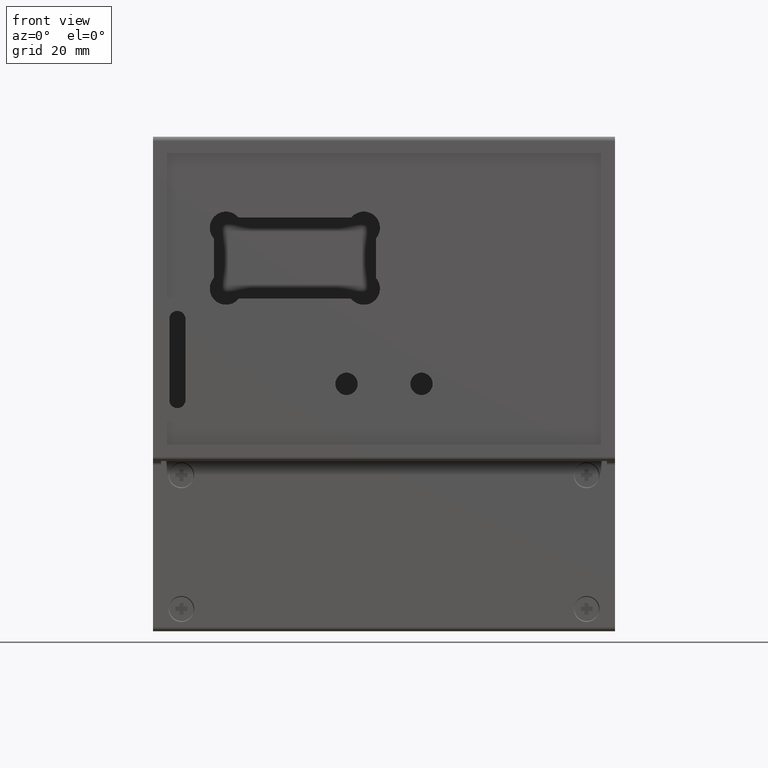
[diagram: clean part render]
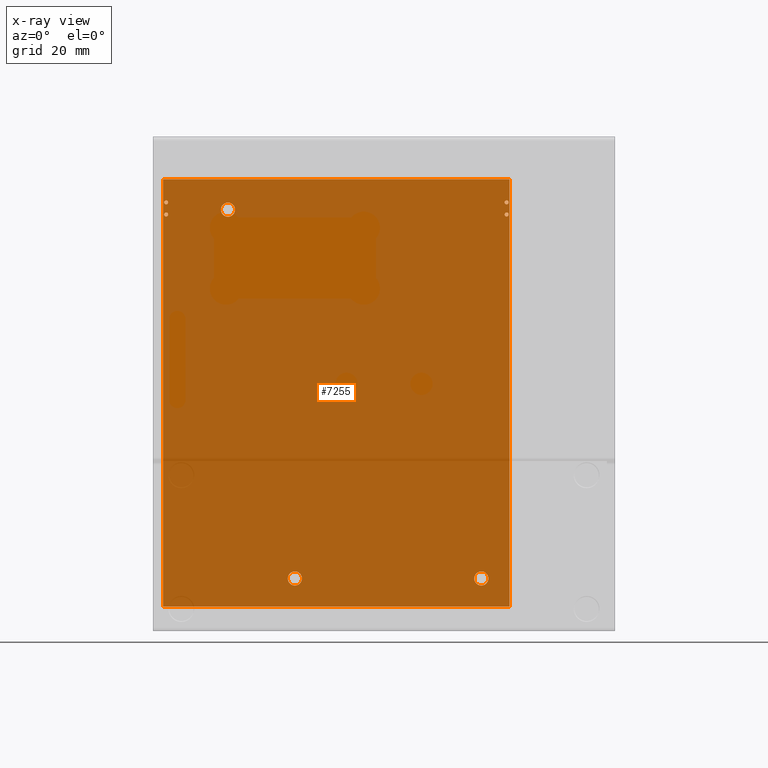
[diagram: x-ray — body ghosted, one internal face saturated and labeled with its STEP entity id]
A machine part, front view, then the same camera in x-ray: the body is ghosted and one INTERNAL B-rep face — a face not visible from any outside direction — is saturated and labeled: STEP entity #7255.
In plain terms, the highlighted planar face has unit normal (0, -1, 0).
Its self-contained STEP definition (entity closure, byte-faithful):
#6597=CARTESIAN_POINT('',(-41.750000000000000,-11.300000000000001,-0.800000000000011));
#6598=VERTEX_POINT('',#6597);
#6614=CARTESIAN_POINT('',(-42.750000000000000,-11.300000000000001,-0.800000000000011));
#6615=VERTEX_POINT('',#6614);
#6622=CARTESIAN_POINT('',(-42.250000000000000,-11.300000000000001,-0.800000000000011));
#6623=DIRECTION('',(0.0,0.0,1.0));
#6624=DIRECTION('',(1.0,0.0,0.0));
#6625=AXIS2_PLACEMENT_3D('',#6622,#6623,#6624);
#6626=CIRCLE('',#6625,0.500000000000000);
#6627=EDGE_CURVE('',#6598,#6615,#6626,.T.);
#6639=CARTESIAN_POINT('',(42.250000000000000,-11.300000000000001,-0.800000000000011));
#6640=VERTEX_POINT('',#6639);
#6656=CARTESIAN_POINT('',(41.250000000000000,-11.300000000000001,-0.800000000000011));
#6657=VERTEX_POINT('',#6656);
#6664=CARTESIAN_POINT('',(41.750000000000000,-11.300000000000001,-0.800000000000011));
#6665=DIRECTION('',(0.0,0.0,1.0));
#6666=DIRECTION('',(1.0,0.0,0.0));
#6667=AXIS2_PLACEMENT_3D('',#6664,#6665,#6666);
#6668=CIRCLE('',#6667,0.500000000000000);
#6669=EDGE_CURVE('',#6640,#6657,#6668,.T.);
#6681=CARTESIAN_POINT('',(-41.750000000000000,-8.300000000000001,-0.800000000000011));
#6682=VERTEX_POINT('',#6681);
#6698=CARTESIAN_POINT('',(-42.750000000000000,-8.300000000000001,-0.800000000000011));
#6699=VERTEX_POINT('',#6698);
#6706=CARTESIAN_POINT('',(-42.250000000000000,-8.300000000000001,-0.800000000000011));
#6707=DIRECTION('',(0.0,0.0,1.0));
#6708=DIRECTION('',(1.0,0.0,0.0));
#6709=AXIS2_PLACEMENT_3D('',#6706,#6707,#6708);
#6710=CIRCLE('',#6709,0.500000000000000);
#6711=EDGE_CURVE('',#6682,#6699,#6710,.T.);
#6723=CARTESIAN_POINT('',(42.250000000000000,-8.300000000000001,-0.800000000000011));
#6724=VERTEX_POINT('',#6723);
#6740=CARTESIAN_POINT('',(41.250000000000000,-8.300000000000001,-0.800000000000011));
#6741=VERTEX_POINT('',#6740);
#6748=CARTESIAN_POINT('',(41.750000000000000,-8.300000000000001,-0.800000000000011));
#6749=DIRECTION('',(0.0,0.0,1.0));
#6750=DIRECTION('',(1.0,0.0,0.0));
#6751=AXIS2_PLACEMENT_3D('',#6748,#6749,#6750);
#6752=CIRCLE('',#6751,0.500000000000000);
#6753=EDGE_CURVE('',#6724,#6741,#6752,.T.);
#6765=CARTESIAN_POINT('',(28.250000000000000,-9.500000000000000,-0.800000000000011));
#6766=VERTEX_POINT('',#6765);
#6782=CARTESIAN_POINT('',(24.750000000000000,-9.500000000000000,-0.800000000000011));
#6783=VERTEX_POINT('',#6782);
#6790=CARTESIAN_POINT('',(26.500000000000000,-9.500000000000000,-0.800000000000011));
#6791=DIRECTION('',(0.0,0.0,1.0));
#6792=DIRECTION('',(1.0,0.0,0.0));
#6793=AXIS2_PLACEMENT_3D('',#6790,#6791,#6792);
#6794=CIRCLE('',#6793,1.750000000000000);
#6795=EDGE_CURVE('',#6766,#6783,#6794,.T.);
#6807=CARTESIAN_POINT('',(-34.250000000000000,81.500000000000000,-0.800000000000011));
#6808=VERTEX_POINT('',#6807);
#6824=CARTESIAN_POINT('',(-37.750000000000000,81.500000000000000,-0.800000000000011));
#6825=VERTEX_POINT('',#6824);
#6832=CARTESIAN_POINT('',(-36.0,81.500000000000000,-0.800000000000011));
#6833=DIRECTION('',(0.0,0.0,1.0));
#6834=DIRECTION('',(1.0,0.0,0.0));
#6835=AXIS2_PLACEMENT_3D('',#6832,#6833,#6834);
#6836=CIRCLE('',#6835,1.750000000000000);
#6837=EDGE_CURVE('',#6808,#6825,#6836,.T.);
#6849=CARTESIAN_POINT('',(11.750000000000000,81.500000000000000,-0.800000000000011));
#6850=VERTEX_POINT('',#6849);
#6866=CARTESIAN_POINT('',(8.250000000000000,81.500000000000000,-0.800000000000011));
#6867=VERTEX_POINT('',#6866);
#6874=CARTESIAN_POINT('',(10.0,81.500000000000000,-0.800000000000011));
#6875=DIRECTION('',(0.0,0.0,1.0));
#6876=DIRECTION('',(1.0,0.0,0.0));
#6877=AXIS2_PLACEMENT_3D('',#6874,#6875,#6876);
#6878=CIRCLE('',#6877,1.750000000000000);
#6879=EDGE_CURVE('',#6850,#6867,#6878,.T.);
#6890=CARTESIAN_POINT('',(10.0,81.500000000000000,-0.800000000000011));
#6891=DIRECTION('',(0.0,0.0,1.0));
#6892=DIRECTION('',(1.0,0.0,0.0));
#6893=AXIS2_PLACEMENT_3D('',#6890,#6891,#6892);
#6894=CIRCLE('',#6893,1.750000000000000);
#6895=EDGE_CURVE('',#6867,#6850,#6894,.T.);
#6914=CARTESIAN_POINT('',(-36.0,81.500000000000000,-0.800000000000011));
#6915=DIRECTION('',(0.0,0.0,1.0));
#6916=DIRECTION('',(1.0,0.0,0.0));
#6917=AXIS2_PLACEMENT_3D('',#6914,#6915,#6916);
#6918=CIRCLE('',#6917,1.750000000000000);
#6919=EDGE_CURVE('',#6825,#6808,#6918,.T.);
#6938=CARTESIAN_POINT('',(26.500000000000000,-9.500000000000000,-0.800000000000011));
#6939=DIRECTION('',(0.0,0.0,1.0));
#6940=DIRECTION('',(1.0,0.0,0.0));
#6941=AXIS2_PLACEMENT_3D('',#6938,#6939,#6940);
#6942=CIRCLE('',#6941,1.750000000000000);
#6943=EDGE_CURVE('',#6783,#6766,#6942,.T.);
#6962=CARTESIAN_POINT('',(41.750000000000000,-8.300000000000001,-0.800000000000011));
#6963=DIRECTION('',(0.0,0.0,1.0));
#6964=DIRECTION('',(1.0,0.0,0.0));
#6965=AXIS2_PLACEMENT_3D('',#6962,#6963,#6964);
#6966=CIRCLE('',#6965,0.500000000000000);
#6967=EDGE_CURVE('',#6741,#6724,#6966,.T.);
#6986=CARTESIAN_POINT('',(-42.250000000000000,-8.300000000000001,-0.800000000000011));
#6987=DIRECTION('',(0.0,0.0,1.0));
#6988=DIRECTION('',(1.0,0.0,0.0));
#6989=AXIS2_PLACEMENT_3D('',#6986,#6987,#6988);
#6990=CIRCLE('',#6989,0.500000000000000);
#6991=EDGE_CURVE('',#6699,#6682,#6990,.T.);
#7010=CARTESIAN_POINT('',(41.750000000000000,-11.300000000000001,-0.800000000000011));
#7011=DIRECTION('',(0.0,0.0,1.0));
#7012=DIRECTION('',(1.0,0.0,0.0));
#7013=AXIS2_PLACEMENT_3D('',#7010,#7011,#7012);
#7014=CIRCLE('',#7013,0.500000000000000);
#7015=EDGE_CURVE('',#6657,#6640,#7014,.T.);
#7034=CARTESIAN_POINT('',(-42.250000000000000,-11.300000000000001,-0.800000000000011));
#7035=DIRECTION('',(0.0,0.0,1.0));
#7036=DIRECTION('',(1.0,0.0,0.0));
#7037=AXIS2_PLACEMENT_3D('',#7034,#7035,#7036);
#7038=CIRCLE('',#7037,0.500000000000000);
#7039=EDGE_CURVE('',#6615,#6598,#7038,.T.);
#7067=CARTESIAN_POINT('',(-43.000000000000014,88.500000000000000,-0.800000000000000));
#7068=VERTEX_POINT('',#7067);
#7075=CARTESIAN_POINT('',(-43.0,-17.0,-0.800000000000000));
#7076=VERTEX_POINT('',#7075);
#7077=CARTESIAN_POINT('',(-43.000000000000014,88.500000000000000,-0.800000000000000));
#7078=DIRECTION('',(0.0,-1.0,0.0));
#7079=VECTOR('',#7078,105.500000000000000);
#7080=LINE('',#7077,#7079);
#7081=EDGE_CURVE('',#7068,#7076,#7080,.T.);
#7105=CARTESIAN_POINT('',(42.500000000000000,88.500000000000000,-0.800000000000000));
#7106=VERTEX_POINT('',#7105);
#7113=CARTESIAN_POINT('',(42.500000000000000,88.500000000000000,-0.800000000000000));
#7114=DIRECTION('',(-1.0,0.0,0.0));
#7115=VECTOR('',#7114,85.500000000000014);
#7116=LINE('',#7113,#7115);
#7117=EDGE_CURVE('',#7106,#7068,#7116,.T.);
#7136=CARTESIAN_POINT('',(42.500000000000000,-17.000000000000004,-0.800000000000000));
#7137=VERTEX_POINT('',#7136);
#7144=CARTESIAN_POINT('',(42.500000000000000,-17.000000000000004,-0.800000000000000));
#7145=DIRECTION('',(0.0,1.0,0.0));
#7146=VECTOR('',#7145,105.500000000000000);
#7147=LINE('',#7144,#7146);
#7148=EDGE_CURVE('',#7137,#7106,#7147,.T.);
#7166=CARTESIAN_POINT('',(-43.0,-17.0,-0.800000000000000));
#7167=DIRECTION('',(1.0,0.0,0.0));
#7168=VECTOR('',#7167,85.500000000000000);
#7169=LINE('',#7166,#7168);
#7170=EDGE_CURVE('',#7076,#7137,#7169,.T.);
#7216=CARTESIAN_POINT('',(-0.250000000000000,35.750000000000000,-0.800000000000000));
#7217=DIRECTION('',(0.0,0.0,1.0));
#7218=DIRECTION('',(1.0,0.0,0.0));
#7219=AXIS2_PLACEMENT_3D('',#7216,#7217,#7218);
#7220=PLANE('',#7219);
#7221=ORIENTED_EDGE('',*,*,#7170,.F.);
#7222=ORIENTED_EDGE('',*,*,#7081,.F.);
#7223=ORIENTED_EDGE('',*,*,#7117,.F.);
#7224=ORIENTED_EDGE('',*,*,#7148,.F.);
#7225=EDGE_LOOP('',(#7221,#7222,#7223,#7224));
#7226=FACE_OUTER_BOUND('',#7225,.T.);
#7227=ORIENTED_EDGE('',*,*,#6895,.T.);
#7228=ORIENTED_EDGE('',*,*,#6879,.T.);
#7229=EDGE_LOOP('',(#7227,#7228));
#7230=FACE_BOUND('',#7229,.T.);
#7231=ORIENTED_EDGE('',*,*,#6919,.T.);
#7232=ORIENTED_EDGE('',*,*,#6837,.T.);
#7233=EDGE_LOOP('',(#7231,#7232));
#7234=FACE_BOUND('',#7233,.T.);
#7235=ORIENTED_EDGE('',*,*,#6943,.T.);
#7236=ORIENTED_EDGE('',*,*,#6795,.T.);
#7237=EDGE_LOOP('',(#7235,#7236));
#7238=FACE_BOUND('',#7237,.T.);
#7239=ORIENTED_EDGE('',*,*,#6967,.T.);
#7240=ORIENTED_EDGE('',*,*,#6753,.T.);
#7241=EDGE_LOOP('',(#7239,#7240));
#7242=FACE_BOUND('',#7241,.T.);
#7243=ORIENTED_EDGE('',*,*,#6991,.T.);
#7244=ORIENTED_EDGE('',*,*,#6711,.T.);
#7245=EDGE_LOOP('',(#7243,#7244));
#7246=FACE_BOUND('',#7245,.T.);
#7247=ORIENTED_EDGE('',*,*,#7015,.T.);
#7248=ORIENTED_EDGE('',*,*,#6669,.T.);
#7249=EDGE_LOOP('',(#7247,#7248));
#7250=FACE_BOUND('',#7249,.T.);
#7251=ORIENTED_EDGE('',*,*,#7039,.T.);
#7252=ORIENTED_EDGE('',*,*,#6627,.T.);
#7253=EDGE_LOOP('',(#7251,#7252));
#7254=FACE_BOUND('',#7253,.T.);
#7255=ADVANCED_FACE('',(#7226,#7230,#7234,#7238,#7242,#7246,#7250,#7254),#7220,.F.);